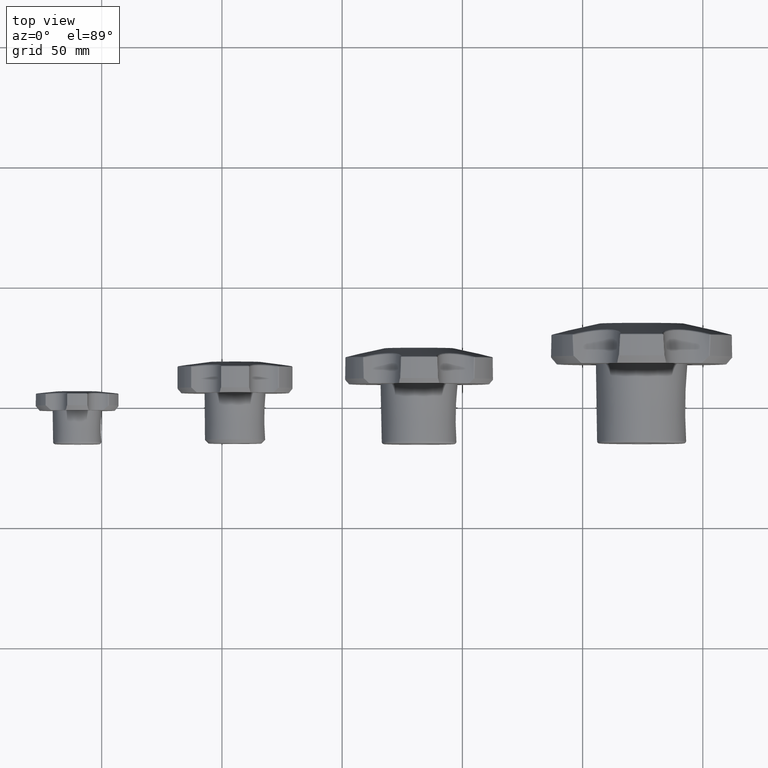
[diagram: clean part render]
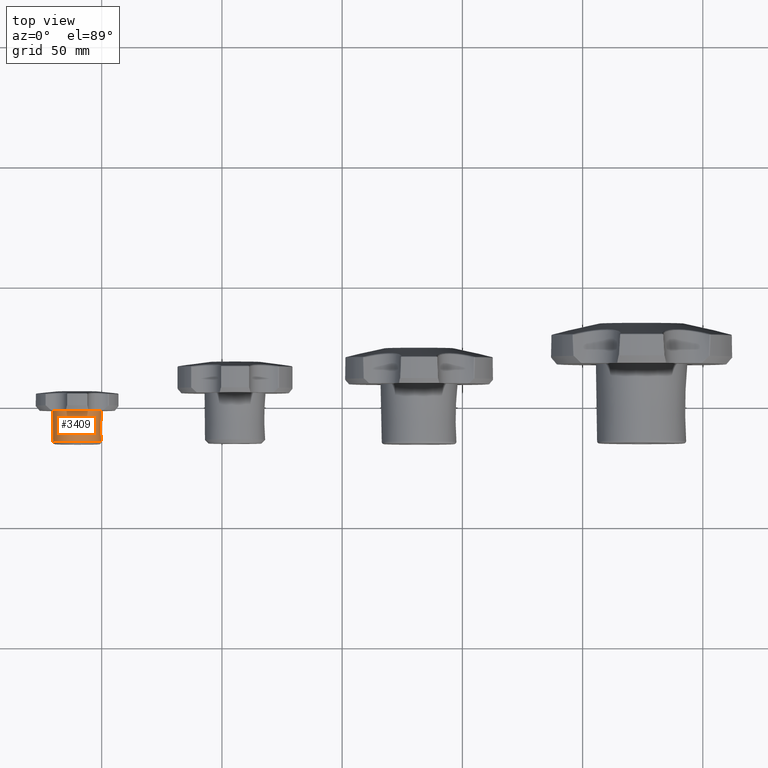
[diagram: same view with one face highlighted and labeled with its STEP entity id]
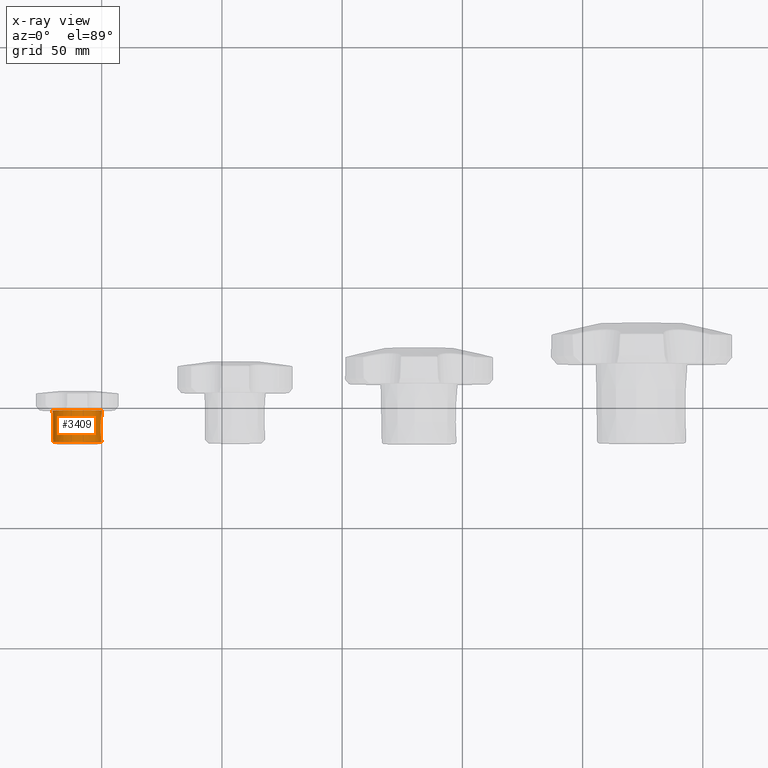
[diagram: x-ray of the same camera — body ghosted, the highlighted face saturated]
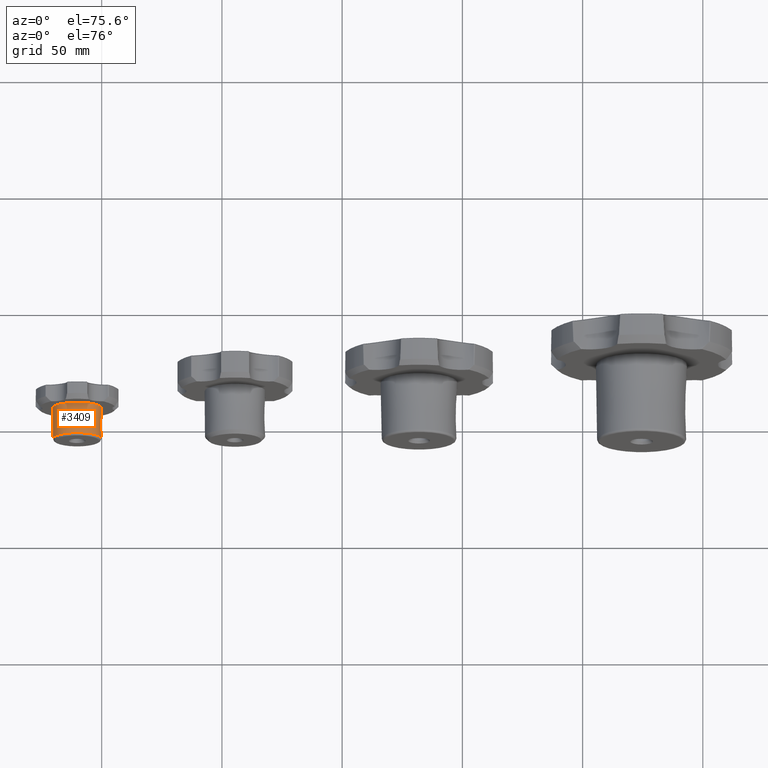
[diagram: same view with one face highlighted and labeled with its STEP entity id]
A machine part, top view. The second image highlights one B-rep face of the part: STEP entity #3409.
The next image is the same camera in x-ray: the body ghosted, the highlighted face saturated — about 0% of this face is hidden behind the body in this view.
A second angle (auxiliary view) of the same face is appended — the face is thin or edge-on in the first view.
In plain terms, the highlighted conical surface has half-angle 0.818 deg.
Its self-contained STEP definition (entity closure, byte-faithful):
#505=CONICAL_SURFACE('',#3675,10.2,0.818455461688615);
#560=FACE_BOUND('',#855,.T.);
#594=FACE_OUTER_BOUND('',#854,.T.);
#854=EDGE_LOOP('',(#2304));
#855=EDGE_LOOP('',(#2305));
#1143=CIRCLE('',#3672,10.0140816534745);
#1145=CIRCLE('',#3676,10.2);
#1441=VERTEX_POINT('',#5236);
#1443=VERTEX_POINT('',#5242);
#1763=EDGE_CURVE('',#1441,#1441,#1143,.T.);
#1765=EDGE_CURVE('',#1443,#1443,#1145,.T.);
#2304=ORIENTED_EDGE('',*,*,#1765,.F.);
#2305=ORIENTED_EDGE('',*,*,#1763,.F.);
#3409=ADVANCED_FACE('',(#594,#560),#505,.T.);
#3672=AXIS2_PLACEMENT_3D('',#5237,#4180,#4181);
#3675=AXIS2_PLACEMENT_3D('',#5241,#4186,#4187);
#3676=AXIS2_PLACEMENT_3D('',#5243,#4188,#4189);
#4180=DIRECTION('center_axis',(0.,-1.,0.));
#4181=DIRECTION('ref_axis',(1.,0.,1.22464679914735E-16));
#4186=DIRECTION('center_axis',(0.,1.,0.));
#4187=DIRECTION('ref_axis',(-1.,0.,0.));
#4188=DIRECTION('center_axis',(0.,1.,0.));
#4189=DIRECTION('ref_axis',(-1.,0.,0.));
#5236=CARTESIAN_POINT('',(-10.0140816534745,-13.0142842567828,-2.45274260866556E-15));
#5237=CARTESIAN_POINT('Origin',(0.,-13.0142842567828,0.));
#5241=CARTESIAN_POINT('Origin',(0.,0.,0.));
#5242=CARTESIAN_POINT('',(-10.2,0.,0.));
#5243=CARTESIAN_POINT('Origin',(0.,0.,0.));